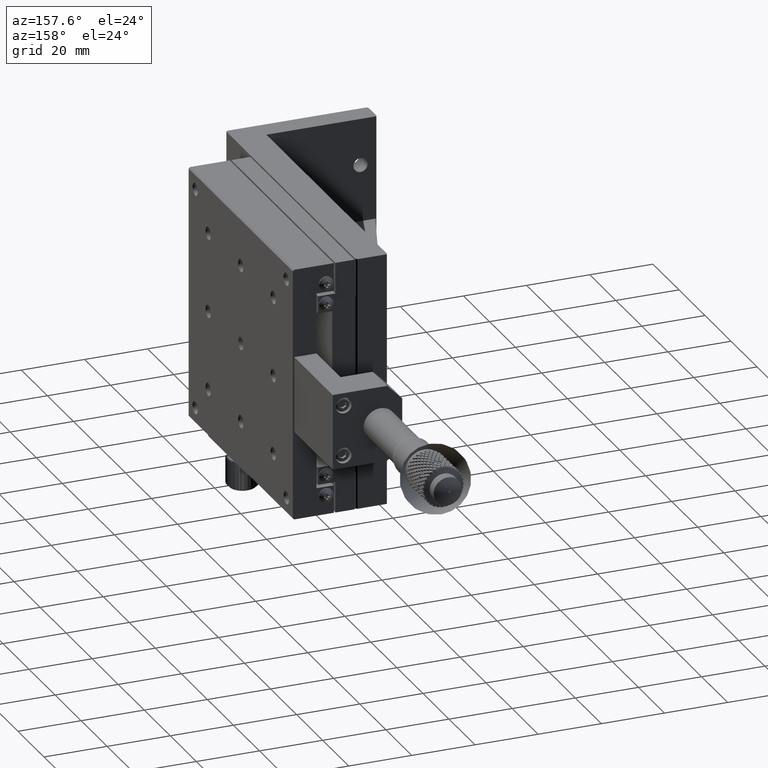
[diagram: clean part render]
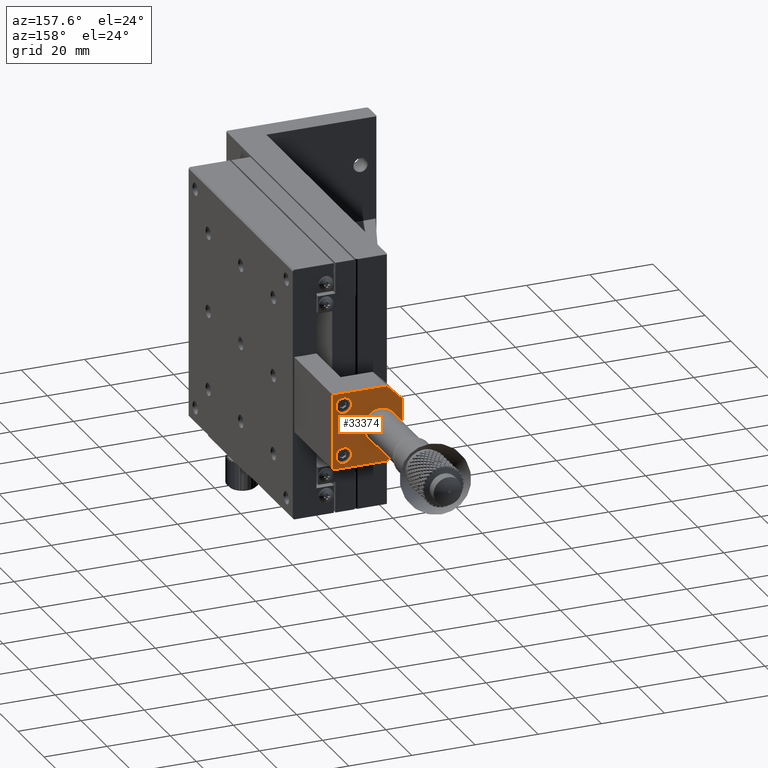
[diagram: same view with one face highlighted and labeled with its STEP entity id]
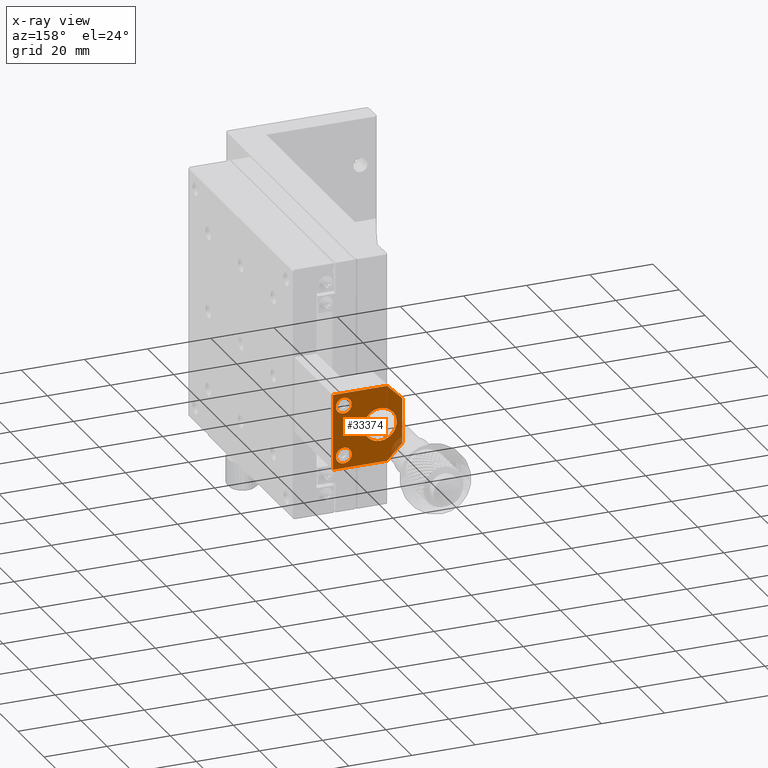
[diagram: x-ray of the same camera — body ghosted, the highlighted face saturated]
A machine part, auxiliary view. The second image highlights one B-rep face of the part: STEP entity #33374.
The next image is the same camera in x-ray: the body ghosted, the highlighted face saturated — about 3% of this face is hidden behind the body in this view.
In plain terms, the highlighted planar face has unit normal (0, 1, 0).
Its self-contained STEP definition (entity closure, byte-faithful):
#327 = CARTESIAN_POINT ( 'NONE',  ( 2.299999999999999822, 129.5000000000000000, -28.00000000000000000 ) ) ;
#509 = ORIENTED_EDGE ( 'NONE', *, *, #8148, .T. ) ;
#2828 = DIRECTION ( 'NONE',  ( -0.000000000000000000, -0.000000000000000000, -1.000000000000000000 ) ) ;
#5639 = DIRECTION ( 'NONE',  ( -0.7071067811865510144, -0.000000000000000000, 0.7071067811865441310 ) ) ;
#7507 = ORIENTED_EDGE ( 'NONE', *, *, #33041, .T. ) ;
#7883 = DIRECTION ( 'NONE',  ( 1.000000000000000000, -0.000000000000000000, 0.000000000000000000 ) ) ;
#8148 = EDGE_CURVE ( 'NONE', #74742, #20952, #22691, .T. ) ;
#11459 = CIRCLE ( 'NONE', #51210, 5.249999999999997335 ) ;
#13261 = ORIENTED_EDGE ( 'NONE', *, *, #31252, .T. ) ;
#14524 = CARTESIAN_POINT ( 'NONE',  ( 2.299999999999999822, 129.5000000000000000, -28.00000000000000000 ) ) ;
#14866 = EDGE_LOOP ( 'NONE', ( #70608 ) ) ;
#15115 = CARTESIAN_POINT ( 'NONE',  ( -2.500000000000002220, 129.5000000000000000, -32.79999999999999716 ) ) ;
#15278 = VERTEX_POINT ( 'NONE', #90069 ) ;
#16110 = DIRECTION ( 'NONE',  ( 0.000000000000000000, 0.000000000000000000, 1.000000000000000000 ) ) ;
#16313 = PLANE ( 'NONE',  #89688 ) ;
#16506 = CARTESIAN_POINT ( 'NONE',  ( 19.50000000000000000, 129.5000000000000000, -52.00000000000001421 ) ) ;
#16845 = FACE_BOUND ( 'NONE', #35319, .T. ) ;
#20952 = VERTEX_POINT ( 'NONE', #15115 ) ;
#22691 = LINE ( 'NONE', #55768, #32813 ) ;
#24329 = ORIENTED_EDGE ( 'NONE', *, *, #50944, .T. ) ;
#24957 = EDGE_LOOP ( 'NONE', ( #91604 ) ) ;
#25672 = VECTOR ( 'NONE', #65686, 999.9999999999998863 ) ;
#30199 = CARTESIAN_POINT ( 'NONE',  ( 4.500000000000000888, 129.5000000000000000, -40.00000000000000000 ) ) ;
#31152 = EDGE_CURVE ( 'NONE', #36376, #48681, #82120, .T. ) ;
#31252 = EDGE_CURVE ( 'NONE', #85299, #74742, #103769, .T. ) ;
#31270 = DIRECTION ( 'NONE',  ( -0.000000000000000000, -1.000000000000000000, -0.000000000000000000 ) ) ;
#31620 = CARTESIAN_POINT ( 'NONE',  ( 19.50000000000000000, 129.5000000000000000, -28.00000000000000000 ) ) ;
#32813 = VECTOR ( 'NONE', #88845, 1000.000000000000000 ) ;
#33041 = EDGE_CURVE ( 'NONE', #48681, #80061, #59232, .T. ) ;
#33365 = EDGE_CURVE ( 'NONE', #20952, #36376, #66228, .T. ) ;
#33374 = ADVANCED_FACE ( 'NONE', ( #90571, #105245, #16845, #99257 ), #16313, .T. ) ;
#34109 = DIRECTION ( 'NONE',  ( 0.000000000000000000, -0.000000000000000000, 1.000000000000000000 ) ) ;
#35319 = EDGE_LOOP ( 'NONE', ( #24329 ) ) ;
#36376 = VERTEX_POINT ( 'NONE', #14524 ) ;
#37088 = VECTOR ( 'NONE', #5639, 999.9999999999998863 ) ;
#38604 = CARTESIAN_POINT ( 'NONE',  ( 19.50000000000000000, 129.5000000000000000, -52.00000000000000711 ) ) ;
#40174 = VERTEX_POINT ( 'NONE', #41769 ) ;
#40215 = DIRECTION ( 'NONE',  ( 0.000000000000000000, 0.000000000000000000, 1.000000000000000000 ) ) ;
#40501 = DIRECTION ( 'NONE',  ( 0.000000000000000000, 0.000000000000000000, 1.000000000000000000 ) ) ;
#41769 = CARTESIAN_POINT ( 'NONE',  ( 16.00000000000000000, 129.5000000000000000, -29.50000000000000355 ) ) ;
#42923 = CARTESIAN_POINT ( 'NONE',  ( 19.50000000000000000, 129.5000000000000000, -28.00000000000000000 ) ) ;
#47586 = AXIS2_PLACEMENT_3D ( 'NONE', #97462, #48660, #40501 ) ;
#48175 = ORIENTED_EDGE ( 'NONE', *, *, #31152, .T. ) ;
#48363 = CARTESIAN_POINT ( 'NONE',  ( 16.00000000000000000, 129.5000000000000000, -48.00000000000000000 ) ) ;
#48660 = DIRECTION ( 'NONE',  ( -0.000000000000000000, -1.000000000000000000, -0.000000000000000000 ) ) ;
#48681 = VERTEX_POINT ( 'NONE', #31620 ) ;
#49952 = DIRECTION ( 'NONE',  ( -0.000000000000000000, -1.000000000000000000, -0.000000000000000000 ) ) ;
#50944 = EDGE_CURVE ( 'NONE', #15278, #15278, #57811, .T. ) ;
#51196 = ORIENTED_EDGE ( 'NONE', *, *, #63750, .T. ) ;
#51210 = AXIS2_PLACEMENT_3D ( 'NONE', #30199, #31270, #16110 ) ;
#52310 = EDGE_CURVE ( 'NONE', #40174, #40174, #56260, .T. ) ;
#52719 = VECTOR ( 'NONE', #7883, 1000.000000000000000 ) ;
#54910 = DIRECTION ( 'NONE',  ( -1.000000000000000000, -0.000000000000000000, 0.000000000000000000 ) ) ;
#55768 = CARTESIAN_POINT ( 'NONE',  ( -2.499999999999998668, 129.5000000000000000, 0.000000000000000000 ) ) ;
#56260 = CIRCLE ( 'NONE', #47586, 2.499999999999998668 ) ;
#56591 = ORIENTED_EDGE ( 'NONE', *, *, #33365, .T. ) ;
#57811 = CIRCLE ( 'NONE', #90729, 2.500000000000002220 ) ;
#59232 = LINE ( 'NONE', #42923, #84390 ) ;
#63750 = EDGE_CURVE ( 'NONE', #80061, #85299, #96131, .T. ) ;
#65686 = DIRECTION ( 'NONE',  ( 0.7071067811865479058, 0.000000000000000000, 0.7071067811865472397 ) ) ;
#65717 = VERTEX_POINT ( 'NONE', #98741 ) ;
#66228 = LINE ( 'NONE', #90039, #25672 ) ;
#67710 = EDGE_CURVE ( 'NONE', #65717, #65717, #11459, .T. ) ;
#70608 = ORIENTED_EDGE ( 'NONE', *, *, #52310, .T. ) ;
#74742 = VERTEX_POINT ( 'NONE', #85905 ) ;
#79340 = CARTESIAN_POINT ( 'NONE',  ( 2.299999999999999822, 129.5000000000000000, -52.00000000000000711 ) ) ;
#80061 = VERTEX_POINT ( 'NONE', #16506 ) ;
#82120 = LINE ( 'NONE', #327, #52719 ) ;
#82993 = VECTOR ( 'NONE', #54910, 1000.000000000000000 ) ;
#84390 = VECTOR ( 'NONE', #2828, 1000.000000000000000 ) ;
#85299 = VERTEX_POINT ( 'NONE', #104210 ) ;
#85905 = CARTESIAN_POINT ( 'NONE',  ( -2.500000000000015987, 129.5000000000000000, -47.20000000000001705 ) ) ;
#88845 = DIRECTION ( 'NONE',  ( 0.000000000000000000, -0.000000000000000000, 1.000000000000000000 ) ) ;
#89688 = AXIS2_PLACEMENT_3D ( 'NONE', #100846, #93756, #34109 ) ;
#90039 = CARTESIAN_POINT ( 'NONE',  ( -2.499999999999998668, 129.5000000000000000, -32.79999999999999716 ) ) ;
#90069 = CARTESIAN_POINT ( 'NONE',  ( 16.00000000000000000, 129.5000000000000000, -45.50000000000000000 ) ) ;
#90571 = FACE_OUTER_BOUND ( 'NONE', #92014, .T. ) ;
#90729 = AXIS2_PLACEMENT_3D ( 'NONE', #48363, #49952, #40215 ) ;
#91604 = ORIENTED_EDGE ( 'NONE', *, *, #67710, .T. ) ;
#92014 = EDGE_LOOP ( 'NONE', ( #7507, #51196, #13261, #509, #56591, #48175 ) ) ;
#93756 = DIRECTION ( 'NONE',  ( 0.000000000000000000, 1.000000000000000000, 0.000000000000000000 ) ) ;
#96131 = LINE ( 'NONE', #38604, #82993 ) ;
#97462 = CARTESIAN_POINT ( 'NONE',  ( 16.00000000000000000, 129.5000000000000000, -32.00000000000000000 ) ) ;
#98741 = CARTESIAN_POINT ( 'NONE',  ( 4.500000000000000888, 129.5000000000000000, -34.75000000000000000 ) ) ;
#99257 = FACE_BOUND ( 'NONE', #24957, .T. ) ;
#100846 = CARTESIAN_POINT ( 'NONE',  ( 20.00000000000000000, 129.5000000000000000, 0.000000000000000000 ) ) ;
#103769 = LINE ( 'NONE', #79340, #37088 ) ;
#104210 = CARTESIAN_POINT ( 'NONE',  ( 2.299999999999999822, 129.5000000000000000, -52.00000000000001421 ) ) ;
#105245 = FACE_BOUND ( 'NONE', #14866, .T. ) ;